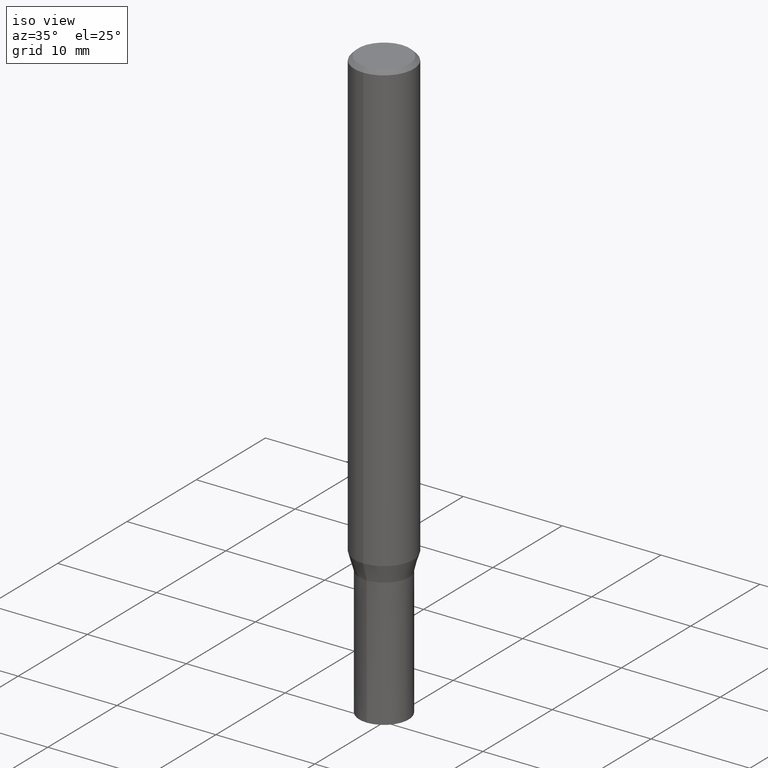
[diagram: clean part render]
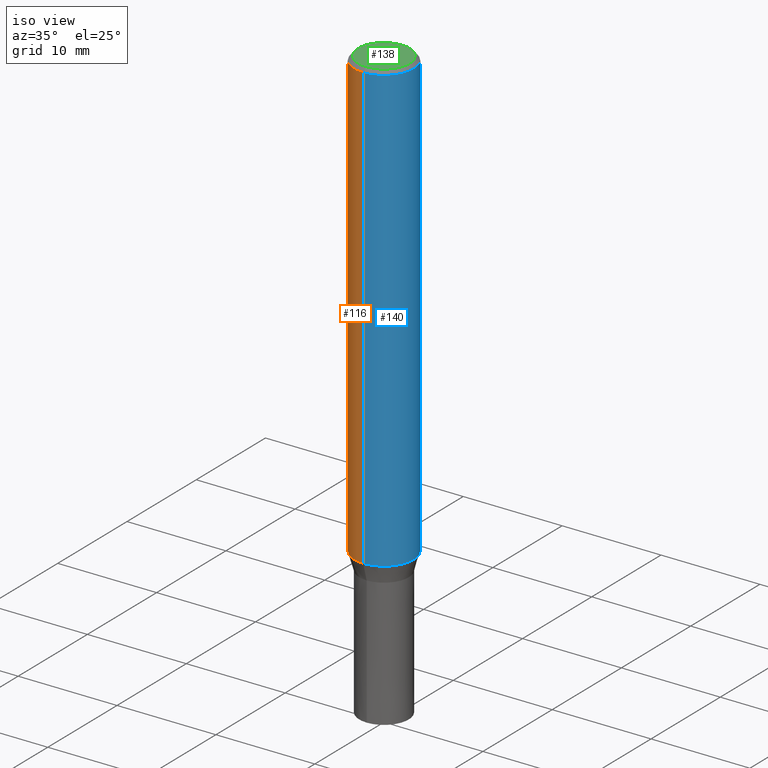
[diagram: same view with three faces highlighted in distinct colors, each labeled with its STEP entity id]
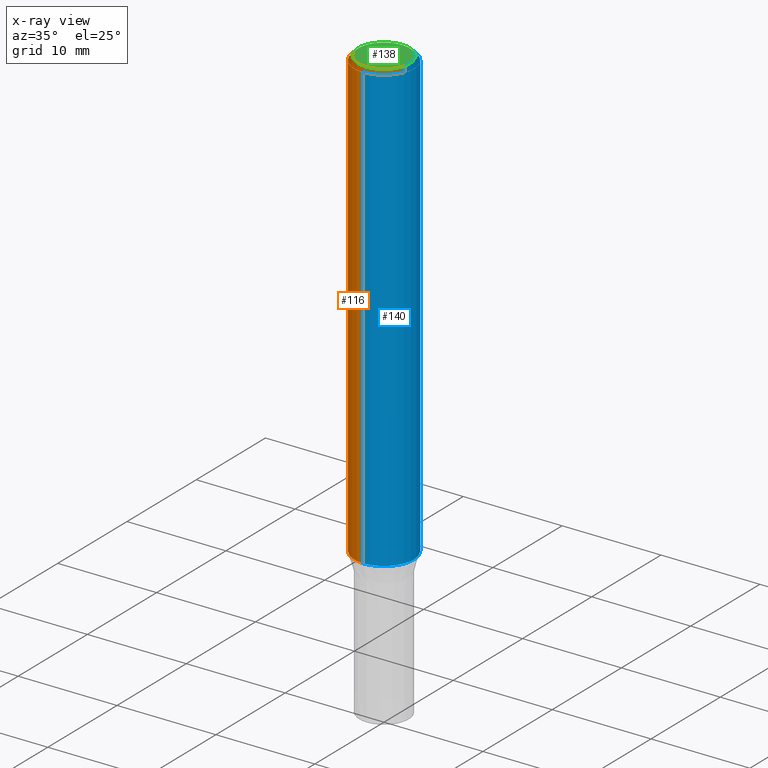
[diagram: x-ray of the same camera — body ghosted, the three highlighted faces saturated]
A machine part, iso view with three faces highlighted in distinct colors.
The next image is the same camera in x-ray (body ghosted, the three faces saturated) — at least one of them is partly hidden behind the body in this view.
Their STEP definitions:

[orange] entity #116 — the highlighted cylindrical surface (edge-blend (fillet) strip) has radius 3 mm, axis along (-0, -0, 1).
#90=EDGE_CURVE('',#96,#166,#211,.T.);
#96=VERTEX_POINT('',#218);
#106=EDGE_CURVE('',#182,#166,#228,.T.);
#116=ADVANCED_FACE('',(#239),#240,.T.);
#142=EDGE_CURVE('',#162,#182,#270,.T.);
#154=EDGE_CURVE('',#96,#162,#285,.T.);
#162=VERTEX_POINT('',#293);
#166=VERTEX_POINT('',#297);
#182=VERTEX_POINT('',#316);
#211=CIRCLE('',#341,3.0);
#218=CARTESIAN_POINT('',(3.67381906146713E-016,-3.0,-45.256));
#228=LINE('',#363,#364);
#239=FACE_OUTER_BOUND('',#378,.T.);
#240=CYLINDRICAL_SURFACE('',#379,3.0);
#270=CIRCLE('',#414,3.0);
#285=LINE('',#430,#431);
#293=CARTESIAN_POINT('',(3.67381906146713E-016,-3.0,-0.399999999999999));
#297=CARTESIAN_POINT('',(0.0,3.0,-45.256));
#316=CARTESIAN_POINT('',(0.0,3.0,-0.399999999999999));
#341=AXIS2_PLACEMENT_3D('',#482,#483,#484);
#363=CARTESIAN_POINT('',(-3.67381906146713E-016,3.0,-22.828));
#364=VECTOR('',#500,1.0);
#378=EDGE_LOOP('',(#512,#513,#514,#515));
#379=AXIS2_PLACEMENT_3D('',#516,#517,#518);
#414=AXIS2_PLACEMENT_3D('',#558,#559,#560);
#430=CARTESIAN_POINT('',(3.67381906146713E-016,-3.0,-22.828));
#431=VECTOR('',#589,1.0);
#482=CARTESIAN_POINT('',(0.0,0.0,-45.256));
#483=DIRECTION('',(0.0,0.0,-1.0));
#484=DIRECTION('',(0.0,1.0,0.0));
#500=DIRECTION('',(0.0,0.0,-1.0));
#512=ORIENTED_EDGE('',*,*,#106,.T.);
#513=ORIENTED_EDGE('',*,*,#90,.F.);
#514=ORIENTED_EDGE('',*,*,#154,.T.);
#515=ORIENTED_EDGE('',*,*,#142,.T.);
#516=CARTESIAN_POINT('',(0.0,0.0,-22.828));
#517=DIRECTION('',(-0.0,-0.0,1.0));
#518=DIRECTION('',(0.0,1.0,0.0));
#558=CARTESIAN_POINT('',(0.0,0.0,-0.399999999999999));
#559=DIRECTION('',(0.0,0.0,-1.0));
#560=DIRECTION('',(0.0,1.0,0.0));
#589=DIRECTION('',(-0.0,-0.0,1.0));

[blue] entity #140 — the highlighted cylindrical surface (edge-blend (fillet) strip) has radius 3 mm, axis along (-0, -0, 1).
#96=VERTEX_POINT('',#218);
#106=EDGE_CURVE('',#182,#166,#228,.T.);
#140=ADVANCED_FACE('',(#267),#268,.T.);
#154=EDGE_CURVE('',#96,#162,#285,.T.);
#156=EDGE_CURVE('',#166,#96,#287,.T.);
#162=VERTEX_POINT('',#293);
#166=VERTEX_POINT('',#297);
#176=EDGE_CURVE('',#182,#162,#307,.T.);
#182=VERTEX_POINT('',#316);
#218=CARTESIAN_POINT('',(3.67381906146713E-016,-3.0,-45.256));
#228=LINE('',#363,#364);
#267=FACE_OUTER_BOUND('',#410,.T.);
#268=CYLINDRICAL_SURFACE('',#411,3.0);
#285=LINE('',#430,#431);
#287=CIRCLE('',#434,3.0);
#293=CARTESIAN_POINT('',(3.67381906146713E-016,-3.0,-0.399999999999999));
#297=CARTESIAN_POINT('',(0.0,3.0,-45.256));
#307=CIRCLE('',#462,3.0);
#316=CARTESIAN_POINT('',(0.0,3.0,-0.399999999999999));
#363=CARTESIAN_POINT('',(-3.67381906146713E-016,3.0,-22.828));
#364=VECTOR('',#500,1.0);
#410=EDGE_LOOP('',(#551,#552,#553,#554));
#411=AXIS2_PLACEMENT_3D('',#555,#556,#557);
#430=CARTESIAN_POINT('',(3.67381906146713E-016,-3.0,-22.828));
#431=VECTOR('',#589,1.0);
#434=AXIS2_PLACEMENT_3D('',#590,#591,#592);
#462=AXIS2_PLACEMENT_3D('',#599,#600,#601);
#500=DIRECTION('',(0.0,0.0,-1.0));
#551=ORIENTED_EDGE('',*,*,#106,.F.);
#552=ORIENTED_EDGE('',*,*,#176,.T.);
#553=ORIENTED_EDGE('',*,*,#154,.F.);
#554=ORIENTED_EDGE('',*,*,#156,.F.);
#555=CARTESIAN_POINT('',(0.0,0.0,-22.828));
#556=DIRECTION('',(-0.0,-0.0,1.0));
#557=DIRECTION('',(0.0,1.0,0.0));
#589=DIRECTION('',(-0.0,-0.0,1.0));
#590=CARTESIAN_POINT('',(0.0,0.0,-45.256));
#591=DIRECTION('',(0.0,0.0,-1.0));
#592=DIRECTION('',(0.0,1.0,0.0));
#599=CARTESIAN_POINT('',(0.0,0.0,-0.399999999999999));
#600=DIRECTION('',(0.0,0.0,-1.0));
#601=DIRECTION('',(0.0,1.0,0.0));

[green] entity #138 — the highlighted planar face has unit normal (-0, 0, 1).
#102=EDGE_CURVE('',#112,#120,#224,.T.);
#112=VERTEX_POINT('',#235);
#118=EDGE_CURVE('',#120,#112,#242,.T.);
#120=VERTEX_POINT('',#244);
#138=ADVANCED_FACE('',(#264),#265,.T.);
#224=CIRCLE('',#356,2.6);
#235=CARTESIAN_POINT('',(3.18397651993818E-016,-2.6,0.0));
#242=CIRCLE('',#382,2.6);
#244=CARTESIAN_POINT('',(0.0,2.6,0.0));
#264=FACE_OUTER_BOUND('',#407,.T.);
#265=PLANE('',#408);
#356=AXIS2_PLACEMENT_3D('',#496,#497,#498);
#382=AXIS2_PLACEMENT_3D('',#519,#520,#521);
#407=EDGE_LOOP('',(#545,#546));
#408=AXIS2_PLACEMENT_3D('',#547,#548,#549);
#496=CARTESIAN_POINT('',(0.0,0.0,0.0));
#497=DIRECTION('',(0.0,0.0,-1.0));
#498=DIRECTION('',(0.0,1.0,0.0));
#519=CARTESIAN_POINT('',(0.0,0.0,0.0));
#520=DIRECTION('',(0.0,0.0,-1.0));
#521=DIRECTION('',(0.0,1.0,0.0));
#545=ORIENTED_EDGE('',*,*,#118,.F.);
#546=ORIENTED_EDGE('',*,*,#102,.F.);
#547=CARTESIAN_POINT('',(0.0,1.3,0.0));
#548=DIRECTION('',(-0.0,0.0,1.0));
#549=DIRECTION('',(0.0,-1.0,0.0));